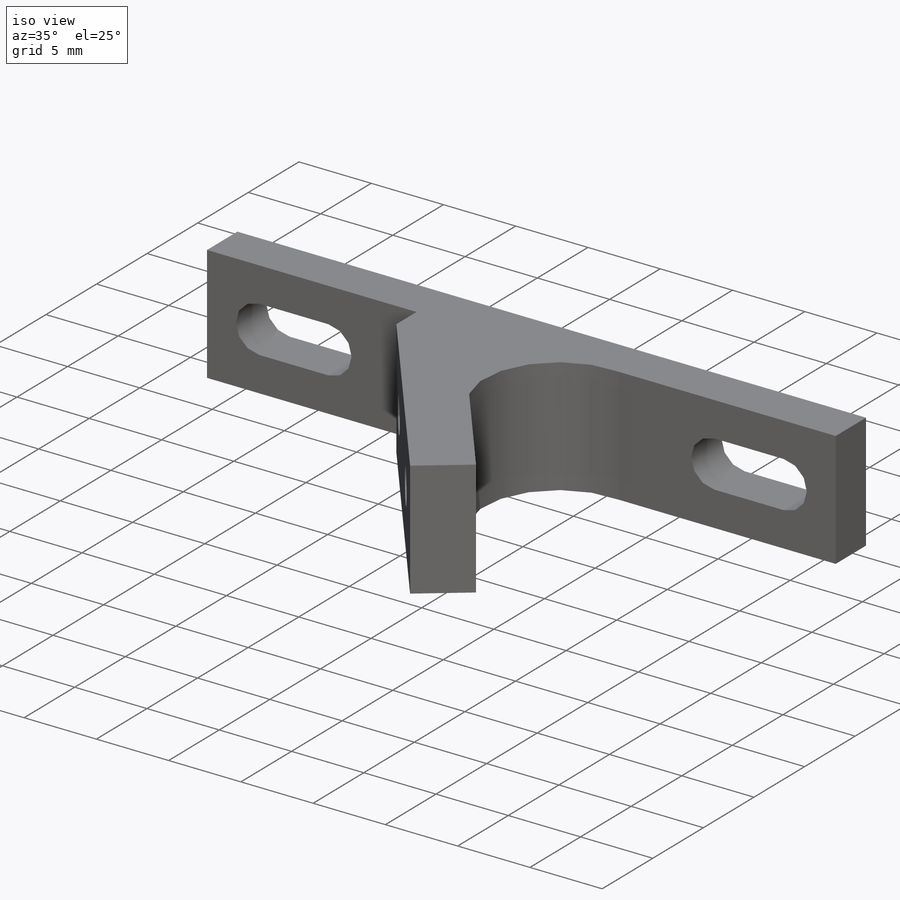
[diagram: iso view]
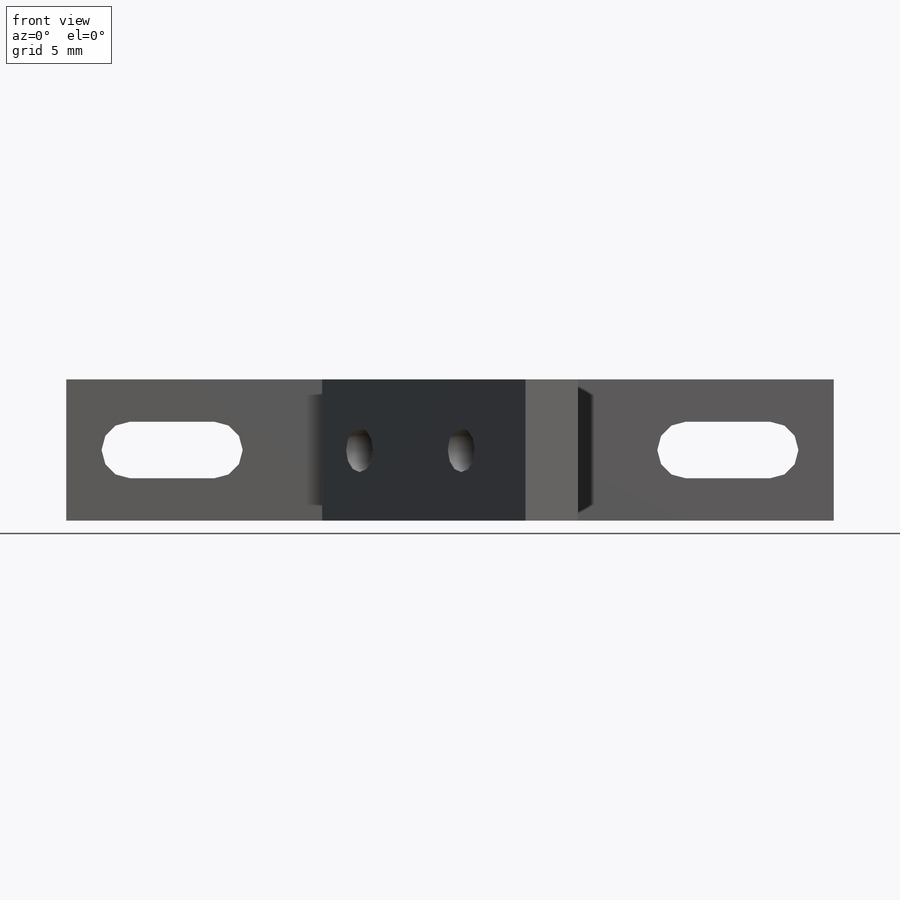
[diagram: front view]
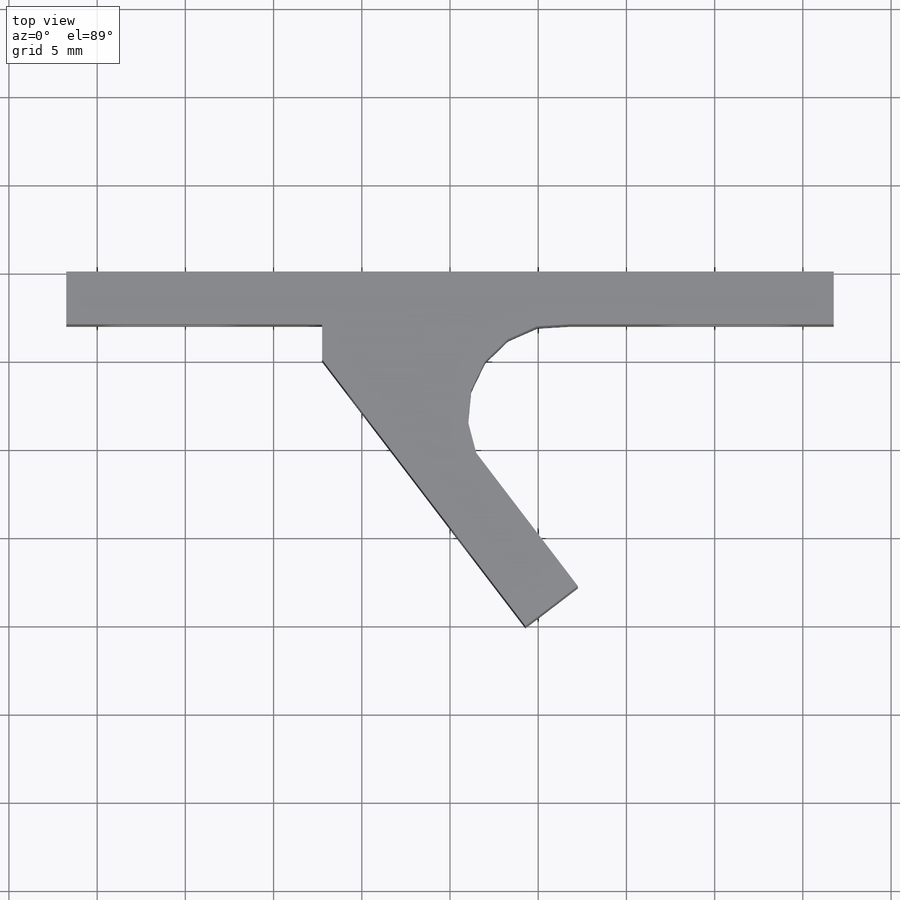
[diagram: top view]
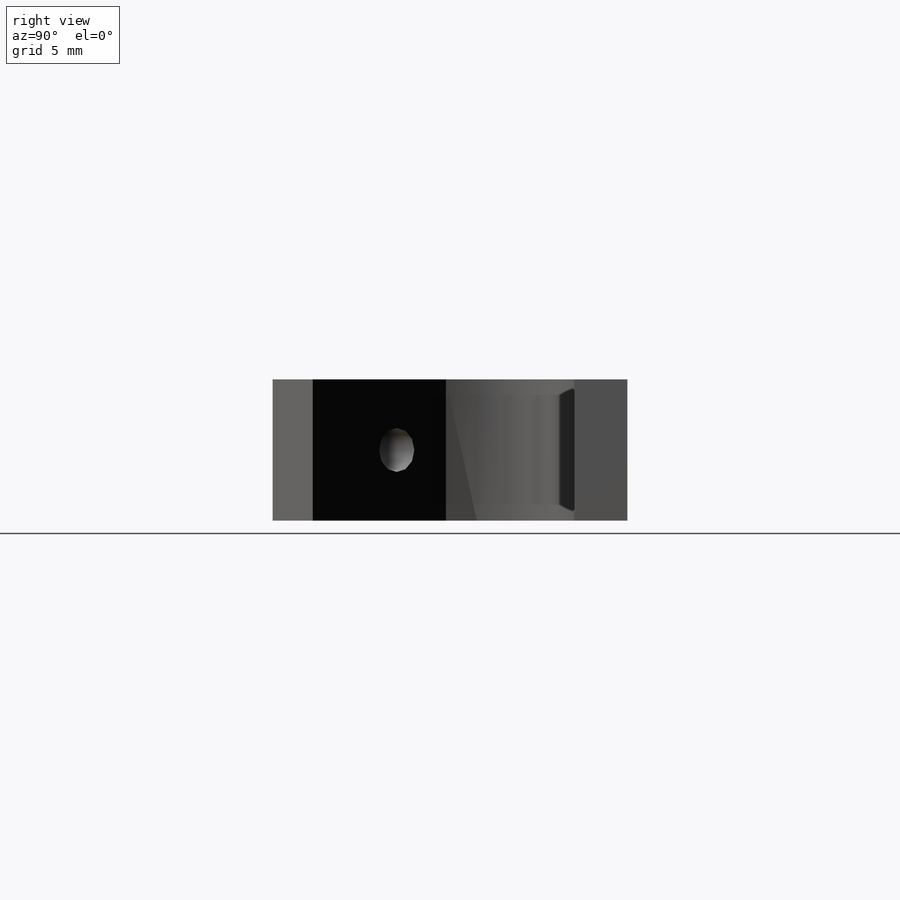
[diagram: right view]
SOLIDWORKS PART (.sldprt)
format: sldprt  version: not decoded by parser v0  size: 265,728 bytes
history: native  units: mm
features: plane x3, sketch x3, cut_extrude x2, material x1, extrude x1 (+10 scaffold rows collapsed)
feature tree (20):
  scaffold x10  (default folders/planes/origin — collapsed)
  material  "Материал <не указан>"
  plane  "Спереди"
  plane  "Сверху"
  plane  "Справа"
  sketch  "Эскиз1"  dims[c1.D13=~5.150729mm c1.D1=21.75mm c1.D2=21.75mm c1.D3=43.5mm c2.D1=43.5mm c2.D2=3.0mm c2.D3=3.0mm c3.D3=90.0deg c3.D1=43.5mm c3.D2=21.75mm c4.D3=~6.15465mm c5.D3=90.0deg c5.D4=3.0mm c5.D5=14.5mm c5.D6=2.0mm c5.D7=3.0mm c5.D8=15.0mm c5.D9=19.0mm c5.D10=~3.740125mm c5.D11=14.5mm c5.D12=9.5mm]
  extrude  "Бобышка-Вытянуть1"  Depth=8mm
  sketch  "Эскиз2"  dims[c1.D1=~0.887174mm c1.D2=1.6mm c2.D1=3.2mm c2.D2=3.2mm c3.D1=4.0mm c3.D3=3.6mm c3.D4=4.8mm]
  cut_extrude  "Вырез-Вытянуть1"  [1 undecoded]
  sketch  "Эскиз3"  dims[D1=2.5mm D4=2.5mm D2=6.0mm D3=4.0mm D5=4.0mm D6=9.5mm]
  cut_extrude  "Вырез-Вытянуть2"  Depth=6mm
decode coverage: 5 of 6 modeling features carry decoded parameters
note: ~ marks probable driven/reference dimensions
note: 1 parameter value undecoded
note: suppression state not decoded; provenance and decode notes live in map.json
